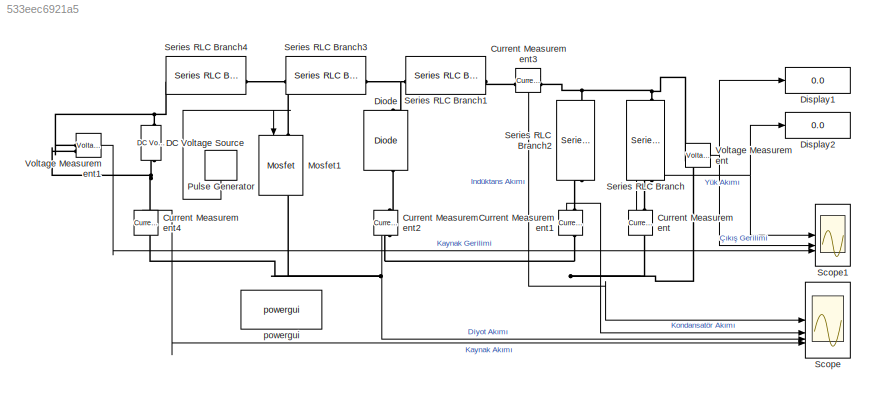
MODEL slx_533eec6921a5
KIND model
CONFIG AbsTol = auto
CONFIG EnableMultiTasking = off
CONFIG FixedStep = auto
CONFIG MaxStep = auto
CONFIG MinStep = auto
CONFIG RelTol = 1e-3
CONFIG SampleTimeConstraint = Unconstrained
CONFIG SolverName = VariableStepAuto
CONFIG StartTime = 0.0
CONFIG StopTime = 0.1
BLOCK [Reference] Current Measurement  REF=spsCurrentMeasurementLib/Current Measurement
  LibrarySourceBlock = sps_lib/Sensors and Measurements/Current Measurement
  NameLocation = right
  SourceBlock = spsCurrentMeasurementLib/Current Measurement
  SourceType = Current Measurement
  UserDataPersistent = on
BLOCK [Reference] Current Measurement1  REF=spsCurrentMeasurementLib/Current Measurement
  LibrarySourceBlock = sps_lib/Sensors and Measurements/Current Measurement
  NameLocation = right
  SourceBlock = spsCurrentMeasurementLib/Current Measurement
  SourceType = Current Measurement
  UserDataPersistent = on
BLOCK [Reference] Current Measurement2  REF=spsCurrentMeasurementLib/Current Measurement
  LibrarySourceBlock = sps_lib/Sensors and Measurements/Current Measurement
  NameLocation = left
  SourceBlock = spsCurrentMeasurementLib/Current Measurement
  SourceType = Current Measurement
  UserDataPersistent = on
BLOCK [Reference] Current Measurement3  REF=spsCurrentMeasurementLib/Current Measurement
  LibrarySourceBlock = sps_lib/Sensors and Measurements/Current Measurement
  NameLocation = top
  SourceBlock = spsCurrentMeasurementLib/Current Measurement
  SourceType = Current Measurement
  UserDataPersistent = on
BLOCK [Reference] Current Measurement4  REF=spsCurrentMeasurementLib/Current Measurement
  LibrarySourceBlock = sps_lib/Sensors and Measurements/Current Measurement
  NameLocation = right
  SourceBlock = spsCurrentMeasurementLib/Current Measurement
  SourceType = Current Measurement
  UserDataPersistent = on
BLOCK [Reference] DC Voltage Source  REF=spsDCVoltageSourceLib/DC Voltage Source
  LibrarySourceBlock = sps_lib/Sources/DC Voltage Source
  SourceBlock = spsDCVoltageSourceLib/DC Voltage Source
  SourceType = DC Voltage Source
BLOCK [Reference] Diode  REF=spsDiodeLib/Diode
  LibrarySourceBlock = sps_lib/Power Electronics/Diode
  NameLocation = left
  SourceBlock = spsDiodeLib/Diode
  SourceType = Diode
BLOCK [Display] Display1
  Decimation = 1
BLOCK [Display] Display2
  Decimation = 1
BLOCK [Reference] Mosfet1  REF=spsMosfetLib/Mosfet
  LibrarySourceBlock = sps_lib/Power Electronics/Mosfet
  NameLocation = left
  SourceBlock = spsMosfetLib/Mosfet
  SourceType = Mosfet
BLOCK [DiscretePulseGenerator] Pulse Generator
  NameLocation = left
  Period = 1/40000
  PulseType = Time based
  PulseWidth = 25
BLOCK [Scope] Scope
  Floating = off
  NumInputPorts = 4
  ScopeSpecificationString = Simulink.scopes.TimeScopeBlockCfg('CurrentConfiguration', extmgr.ConfigurationSet(extmgr.Configuration('Core','General UI',true),extmgr.Configuration('Core','Source UI',true),extmgr.Configuration('Sources','WiredSimulink',true,'DataLoggingVariableName','ScopeData1'),extmgr.Configuration('Visuals','Time Domain',true,'SerializedDisplays',{struct('MinYLimReal','-1.77169','MaxYLimReal','15.94525','YLa...<+3632ch>
BLOCK [Scope] Scope1
  Floating = off
  NumInputPorts = 3
  ScopeSpecificationString = Simulink.scopes.TimeScopeBlockCfg('CurrentConfiguration', extmgr.ConfigurationSet(extmgr.Configuration('Core','General UI',true),extmgr.Configuration('Core','Source UI',true),extmgr.Configuration('Sources','WiredSimulink',true),extmgr.Configuration('Visuals','Time Domain',true,'SerializedDisplays',{struct('MinYLimReal','-8.81168','MaxYLimReal','79.3051','YLabelReal','','MinYLimMag','0.00000','MaxY...<+1601ch>
BLOCK [Reference] Series RLC Branch  REF=spsSeriesRLCBranchLib/Series RLC Branch
  LibrarySourceBlock = sps_lib/Passives/Series RLC Branch
  NameLocation = right
  SourceBlock = spsSeriesRLCBranchLib/Series RLC Branch
  SourceType = Series RLC Branch
BLOCK [Reference] Series RLC Branch1  REF=spsSeriesRLCBranchLib/Series RLC Branch
  LibrarySourceBlock = sps_lib/Passives/Series RLC Branch
  SourceBlock = spsSeriesRLCBranchLib/Series RLC Branch
  SourceType = Series RLC Branch
BLOCK [Reference] Series RLC Branch2  REF=spsSeriesRLCBranchLib/Series RLC Branch
  LibrarySourceBlock = sps_lib/Passives/Series RLC Branch
  NameLocation = right
  SourceBlock = spsSeriesRLCBranchLib/Series RLC Branch
  SourceType = Series RLC Branch
BLOCK [Reference] Series RLC Branch3  REF=spsSeriesRLCBranchLib/Series RLC Branch
  LibrarySourceBlock = sps_lib/Passives/Series RLC Branch
  SourceBlock = spsSeriesRLCBranchLib/Series RLC Branch
  SourceType = Series RLC Branch
BLOCK [Reference] Series RLC Branch4  REF=spsSeriesRLCBranchLib/Series RLC Branch
  LibrarySourceBlock = sps_lib/Passives/Series RLC Branch
  SourceBlock = spsSeriesRLCBranchLib/Series RLC Branch
  SourceType = Series RLC Branch
BLOCK [Reference] Voltage Measurement  REF=spsVoltageMeasurementLib/Voltage Measurement
  LibrarySourceBlock = sps_lib/Sensors and Measurements/Voltage Measurement
  SourceBlock = spsVoltageMeasurementLib/Voltage Measurement
  SourceType = Voltage Measurement
  UserDataPersistent = on
BLOCK [Reference] Voltage Measurement1  REF=spsVoltageMeasurementLib/Voltage Measurement
  LibrarySourceBlock = sps_lib/Sensors and Measurements/Voltage Measurement
  SourceBlock = spsVoltageMeasurementLib/Voltage Measurement
  SourceType = Voltage Measurement
  UserDataPersistent = on
BLOCK [Reference] powergui  REF=sps_lib/powergui
  LibrarySourceBlock = sps_lib/powergui
  Priority = 1
  SourceBlock = sps_lib/powergui
  SourceType = PSB option menu block
LINE Current Measurement1:1 -> Scope:2
LINE Current Measurement2:1 -> Scope:3
LINE Current Measurement3:1 -> Scope:1
LINE Current Measurement4:1 -> Scope:4
NET Current Measurement:1 -> Display2:1, Scope1:1
LINE Pulse Generator:1 -> Mosfet1:1
LINE Voltage Measurement1:1 -> Scope1:3
NET Voltage Measurement:1 -> Display1:1, Scope1:2
PNET net1: Current Measurement1:LConn1 -- Current Measurement2:RConn1 -- Current Measurement4:LConn1 -- Current Measurement:LConn1 -- Mosfet1:RConn1 -- Voltage Measurement:LConn1
PLINE Current Measurement1:RConn1 -- Series RLC Branch2:LConn1
PLINE Current Measurement2:LConn1 -- Diode:RConn1
PNET net2: Current Measurement3:LConn1 -- Series RLC Branch2:RConn1 -- Series RLC Branch:RConn1 -- Voltage Measurement:LConn2
PLINE Current Measurement3:RConn1 -- Series RLC Branch1:RConn1
PNET net3: Current Measurement4:RConn1 -- DC Voltage Source:LConn1 -- Voltage Measurement1:LConn2
PLINE Current Measurement:RConn1 -- Series RLC Branch:LConn1
PNET net4: DC Voltage Source:RConn1 -- Series RLC Branch4:LConn1 -- Voltage Measurement1:LConn1
PNET net5: Diode:LConn1 -- Series RLC Branch1:LConn1 -- Series RLC Branch3:RConn1
PNET net6: Mosfet1:LConn1 -- Series RLC Branch3:LConn1 -- Series RLC Branch4:RConn1
note: NET lines group one-source signal fan-out (src -> all destinations, sorted); 1:1 wires keep LINE; PNET lines group multi-terminal physical nets as a canonical sorted terminal list (undirected conserving connections); 2-terminal nets keep the pairwise PLINE form
